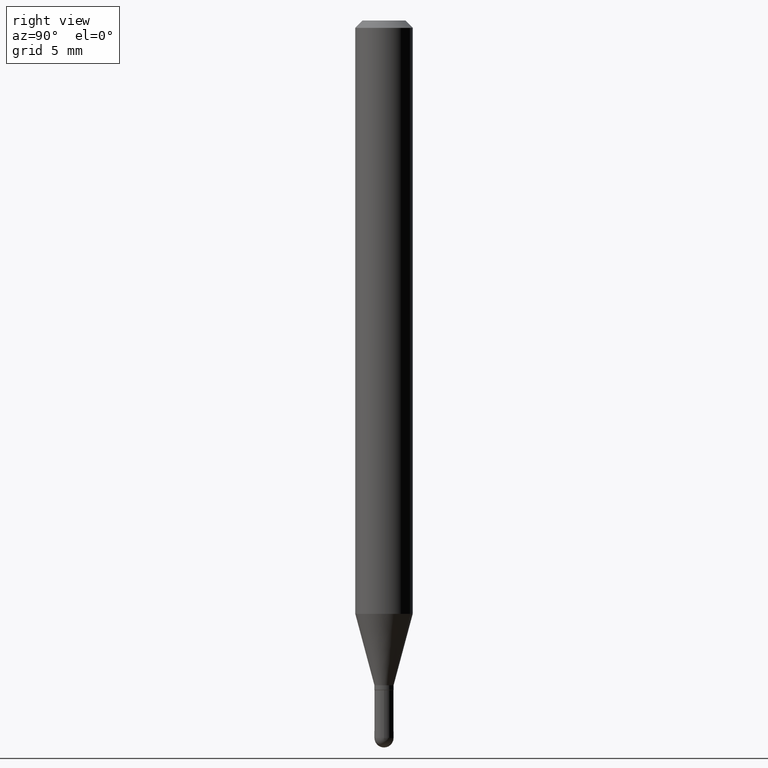
[diagram: clean part render]
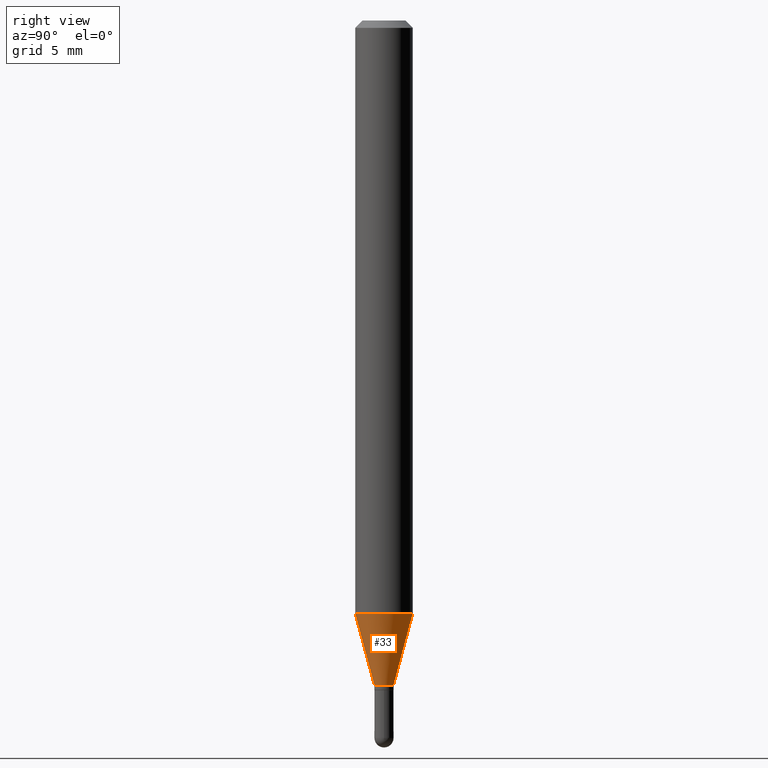
[diagram: same view with one face highlighted and labeled with its STEP entity id]
A machine part, right view. The second image highlights one B-rep face of the part: STEP entity #33.
In plain terms, the highlighted conical surface has half-angle 15 deg.
Its self-contained STEP definition (entity closure, byte-faithful):
#23 = EDGE_LOOP ( 'NONE', ( #408, #451, #418, #102 ) ) ;
#30 = DIRECTION ( 'NONE',  ( -6.982962677686265922E-15, -1.000000000000000000, 0.000000000000000000 ) ) ;
#33 = ADVANCED_FACE ( 'NONE', ( #226 ), #126, .T. ) ;
#54 = AXIS2_PLACEMENT_3D ( 'NONE', #273, #269, #113 ) ;
#62 = VECTOR ( 'NONE', #276, 39.37007874015748143 ) ;
#69 = EDGE_CURVE ( 'NONE', #433, #250, #230, .T. ) ;
#80 = VECTOR ( 'NONE', #129, 39.37007874015748854 ) ;
#102 = ORIENTED_EDGE ( 'NONE', *, *, #275, .F. ) ;
#113 = DIRECTION ( 'NONE',  ( -6.982962677686265922E-15, -1.000000000000000000, 4.626330217890369336E-15 ) ) ;
#115 = CARTESIAN_POINT ( 'NONE',  ( 1.399769189447697785E-16, 0.01969999999999474255, -1.368099999999999872 ) ) ;
#125 = CARTESIAN_POINT ( 'NONE',  ( -4.123439461173442039E-16, -0.05905000000000427962, -1.221243800722163320 ) ) ;
#126 = CONICAL_SURFACE ( 'NONE', #332, 0.01969999999999951998, 0.2617993877991505736 ) ;
#129 = DIRECTION ( 'NONE',  ( -1.807323732225332111E-15, -0.2588190451025184635, 0.9659258262890689783 ) ) ;
#138 = VERTEX_POINT ( 'NONE', #312 ) ;
#144 = EDGE_CURVE ( 'NONE', #260, #250, #369, .T. ) ;
#151 = AXIS2_PLACEMENT_3D ( 'NONE', #297, #497, #334 ) ;
#226 = FACE_OUTER_BOUND ( 'NONE', #23, .T. ) ;
#230 = LINE ( 'NONE', #115, #62 ) ;
#235 = CARTESIAN_POINT ( 'NONE',  ( 3.346997549420744839E-29, -4.774759943166577128E-15, -1.368099999999999872 ) ) ;
#250 = VERTEX_POINT ( 'NONE', #364 ) ;
#260 = VERTEX_POINT ( 'NONE', #125 ) ;
#269 = DIRECTION ( 'NONE',  ( -2.446456800980005402E-29, 3.490066474063722068E-15, 1.000000000000000000 ) ) ;
#273 = CARTESIAN_POINT ( 'NONE',  ( 2.987720201931407293E-29, -4.262222045558578692E-15, -1.221243800722163320 ) ) ;
#275 = EDGE_CURVE ( 'NONE', #138, #260, #325, .T. ) ;
#276 = DIRECTION ( 'NONE',  ( 1.839019923739602287E-15, 0.2588190451025252359, 0.9659258262890670910 ) ) ;
#297 = CARTESIAN_POINT ( 'NONE',  ( 3.346997549420744839E-29, -4.774759943166577128E-15, -1.368099999999999872 ) ) ;
#312 = CARTESIAN_POINT ( 'NONE',  ( -1.375643647503826063E-16, -0.01970000000000429741, -1.368099999999999872 ) ) ;
#325 = LINE ( 'NONE', #479, #80 ) ;
#332 = AXIS2_PLACEMENT_3D ( 'NONE', #235, #386, #30 ) ;
#334 = DIRECTION ( 'NONE',  ( -6.982962677686265922E-15, -1.000000000000000000, 0.000000000000000000 ) ) ;
#361 = EDGE_CURVE ( 'NONE', #138, #433, #470, .T. ) ;
#364 = CARTESIAN_POINT ( 'NONE',  ( 4.195754854663688780E-16, 0.05904999999999572396, -1.221243800722163542 ) ) ;
#369 = CIRCLE ( 'NONE', #54, 0.05904999999999999832 ) ;
#386 = DIRECTION ( 'NONE',  ( -2.446456800980005402E-29, 3.490066474063722068E-15, 1.000000000000000000 ) ) ;
#388 = CARTESIAN_POINT ( 'NONE',  ( 2.797762022055695255E-16, 0.01969999999999474255, -1.368099999999999872 ) ) ;
#408 = ORIENTED_EDGE ( 'NONE', *, *, #361, .T. ) ;
#418 = ORIENTED_EDGE ( 'NONE', *, *, #144, .F. ) ;
#433 = VERTEX_POINT ( 'NONE', #388 ) ;
#451 = ORIENTED_EDGE ( 'NONE', *, *, #69, .T. ) ;
#470 = CIRCLE ( 'NONE', #151, 0.01969999999999951998 ) ;
#479 = CARTESIAN_POINT ( 'NONE',  ( -1.375643647503826063E-16, -0.01970000000000429741, -1.368099999999999872 ) ) ;
#497 = DIRECTION ( 'NONE',  ( -2.446456800980005402E-29, 3.490066474063722068E-15, 1.000000000000000000 ) ) ;